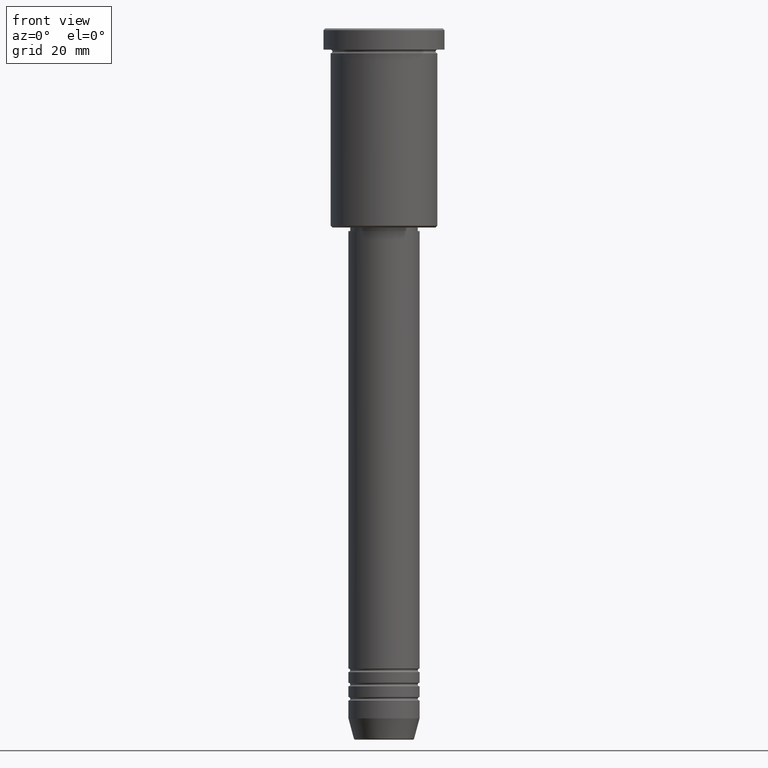
[diagram: clean part render]
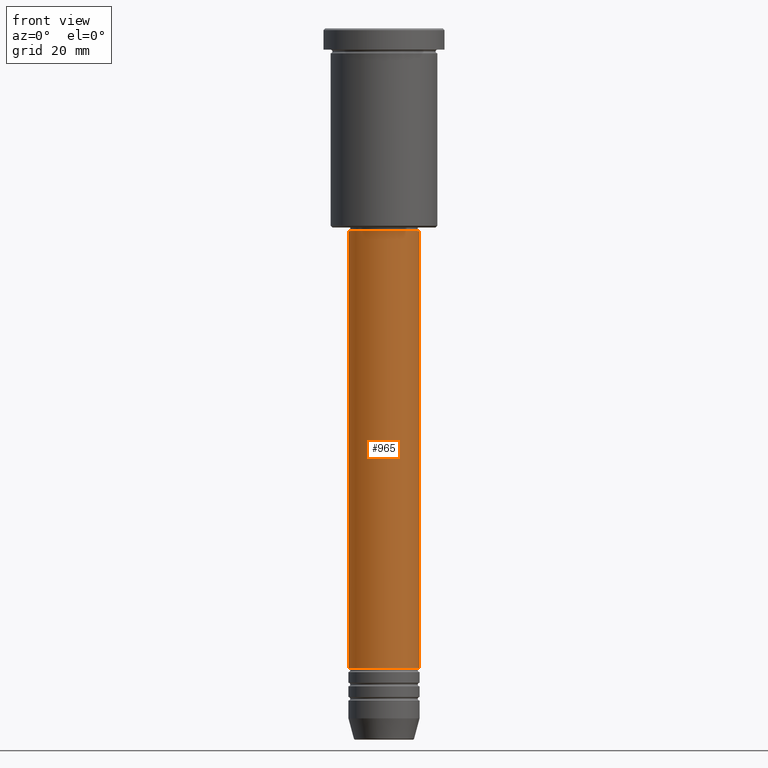
[diagram: same view with one face highlighted and labeled with its STEP entity id]
A machine part, front view. The second image highlights one B-rep face of the part: STEP entity #965.
In plain terms, the highlighted cylindrical surface (edge-blend (fillet) strip) has radius 10 mm, axis along (-0, -0, 1).
Its self-contained STEP definition (entity closure, byte-faithful):
#52 = CARTESIAN_POINT ( 'NONE',  ( 10.00000000000000000, 0.000000000000000000, 0.000000000000000000 ) ) ;
#115 = DIRECTION ( 'NONE',  ( -0.000000000000000000, -0.000000000000000000, 1.000000000000000000 ) ) ;
#131 = CARTESIAN_POINT ( 'NONE',  ( -9.999999999999998224, 1.224646799147353256E-15, -57.00000000000001421 ) ) ;
#163 = VERTEX_POINT ( 'NONE', #477 ) ;
#214 = CARTESIAN_POINT ( 'NONE',  ( 0.000000000000000000, 0.000000000000000000, -180.0000000000000284 ) ) ;
#220 = VERTEX_POINT ( 'NONE', #1145 ) ;
#226 = DIRECTION ( 'NONE',  ( -0.000000000000000000, -0.000000000000000000, 1.000000000000000000 ) ) ;
#306 = CARTESIAN_POINT ( 'NONE',  ( 0.000000000000000000, 0.000000000000000000, -57.00000000000001421 ) ) ;
#313 = CARTESIAN_POINT ( 'NONE',  ( 0.000000000000000000, 0.000000000000000000, 0.000000000000000000 ) ) ;
#331 = DIRECTION ( 'NONE',  ( 1.000000000000000000, 0.000000000000000000, 0.000000000000000000 ) ) ;
#422 = CIRCLE ( 'NONE', #646, 10.00000000000000178 ) ;
#424 = CYLINDRICAL_SURFACE ( 'NONE', #517, 10.00000000000000000 ) ;
#450 = EDGE_CURVE ( 'NONE', #163, #1008, #905, .T. ) ;
#477 = CARTESIAN_POINT ( 'NONE',  ( -10.00000000000000178, 1.224646799147353454E-15, -180.0000000000000284 ) ) ;
#491 = VERTEX_POINT ( 'NONE', #510 ) ;
#510 = CARTESIAN_POINT ( 'NONE',  ( 9.999999999999998224, 0.000000000000000000, -57.00000000000001421 ) ) ;
#512 = EDGE_CURVE ( 'NONE', #220, #491, #572, .T. ) ;
#517 = AXIS2_PLACEMENT_3D ( 'NONE', #313, #226, #599 ) ;
#523 = EDGE_LOOP ( 'NONE', ( #966, #737, #1126, #1095 ) ) ;
#572 = LINE ( 'NONE', #52, #878 ) ;
#590 = VECTOR ( 'NONE', #1091, 1000.000000000000000 ) ;
#594 = CIRCLE ( 'NONE', #843, 9.999999999999998224 ) ;
#599 = DIRECTION ( 'NONE',  ( 1.000000000000000000, 0.000000000000000000, 0.000000000000000000 ) ) ;
#601 = FACE_OUTER_BOUND ( 'NONE', #523, .T. ) ;
#646 = AXIS2_PLACEMENT_3D ( 'NONE', #214, #854, #765 ) ;
#723 = CARTESIAN_POINT ( 'NONE',  ( -10.00000000000000000, 1.224646799147353256E-15, 0.000000000000000000 ) ) ;
#737 = ORIENTED_EDGE ( 'NONE', *, *, #1152, .T. ) ;
#765 = DIRECTION ( 'NONE',  ( 1.000000000000000000, 0.000000000000000000, 0.000000000000000000 ) ) ;
#843 = AXIS2_PLACEMENT_3D ( 'NONE', #306, #1037, #331 ) ;
#854 = DIRECTION ( 'NONE',  ( -0.000000000000000000, -0.000000000000000000, 1.000000000000000000 ) ) ;
#878 = VECTOR ( 'NONE', #115, 1000.000000000000000 ) ;
#905 = LINE ( 'NONE', #723, #590 ) ;
#965 = ADVANCED_FACE ( 'NONE', ( #601 ), #424, .T. ) ;
#966 = ORIENTED_EDGE ( 'NONE', *, *, #450, .F. ) ;
#1001 = EDGE_CURVE ( 'NONE', #1008, #491, #594, .T. ) ;
#1008 = VERTEX_POINT ( 'NONE', #131 ) ;
#1037 = DIRECTION ( 'NONE',  ( -0.000000000000000000, -0.000000000000000000, 1.000000000000000000 ) ) ;
#1091 = DIRECTION ( 'NONE',  ( -0.000000000000000000, -0.000000000000000000, 1.000000000000000000 ) ) ;
#1095 = ORIENTED_EDGE ( 'NONE', *, *, #1001, .F. ) ;
#1126 = ORIENTED_EDGE ( 'NONE', *, *, #512, .T. ) ;
#1145 = CARTESIAN_POINT ( 'NONE',  ( 10.00000000000000178, 0.000000000000000000, -180.0000000000000284 ) ) ;
#1152 = EDGE_CURVE ( 'NONE', #163, #220, #422, .T. ) ;